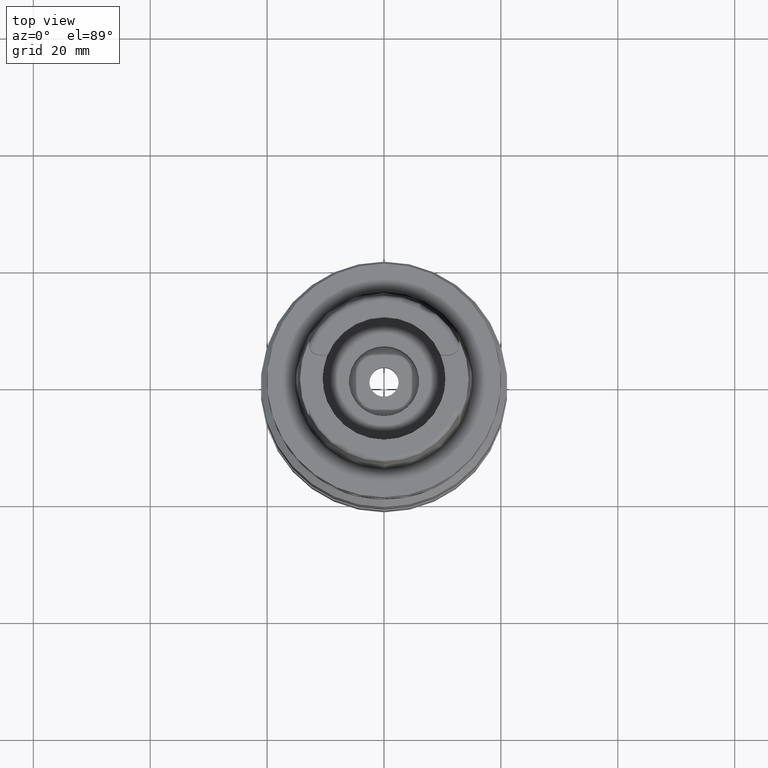
[diagram: clean part render]
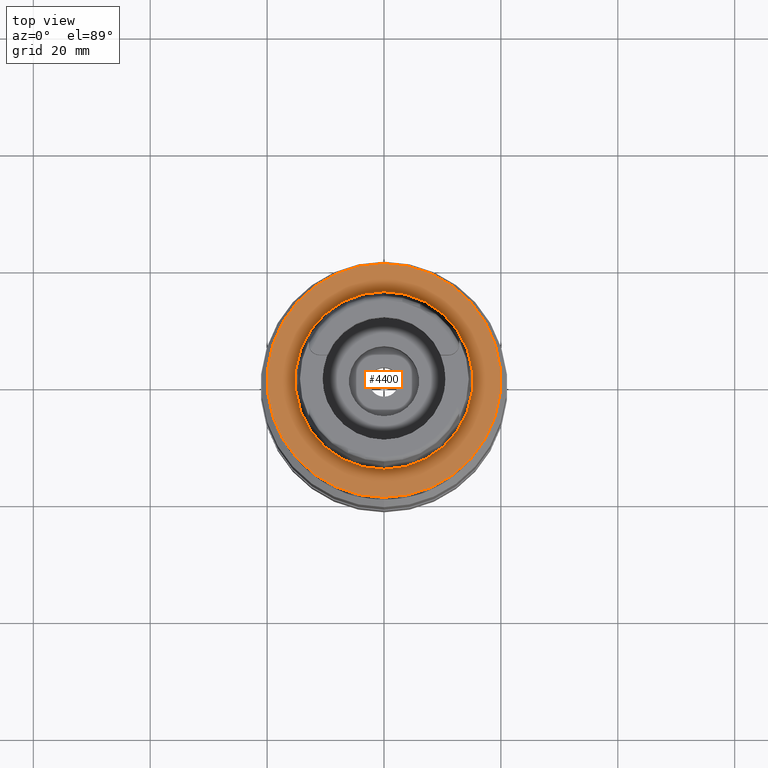
[diagram: same view with one face highlighted and labeled with its STEP entity id]
A machine part, top view. The second image highlights one B-rep face of the part: STEP entity #4400.
In plain terms, the highlighted planar face has unit normal (0, 0, -1).
Its self-contained STEP definition (entity closure, byte-faithful):
#86 = CIRCLE ( 'NONE', #4326, 20.00000000000000000 ) ;
#266 = AXIS2_PLACEMENT_3D ( 'NONE', #4580, #1258, #327 ) ;
#327 = DIRECTION ( 'NONE',  ( 0.0000000000000000000, 1.000000000000000000, 0.0000000000000000000 ) ) ;
#338 = CARTESIAN_POINT ( 'NONE',  ( 0.0000000000000000000, 1.224646799146999965E-14, 0.0000000000000000000 ) ) ;
#493 = VERTEX_POINT ( 'NONE', #5435 ) ;
#622 = CIRCLE ( 'NONE', #266, 15.20000663301000010 ) ;
#625 = CIRCLE ( 'NONE', #5028, 15.20000663301000010 ) ;
#669 = DIRECTION ( 'NONE',  ( 0.0000000000000000000, -1.000000000000000000, 0.0000000000000000000 ) ) ;
#1077 = EDGE_CURVE ( 'NONE', #4221, #493, #86, .T. ) ;
#1127 = VERTEX_POINT ( 'NONE', #4538 ) ;
#1258 = DIRECTION ( 'NONE',  ( 0.0000000000000000000, 0.0000000000000000000, 1.000000000000000000 ) ) ;
#1475 = ORIENTED_EDGE ( 'NONE', *, *, #2012, .F. ) ;
#1526 = EDGE_CURVE ( 'NONE', #1127, #2392, #622, .T. ) ;
#1746 = EDGE_LOOP ( 'NONE', ( #3646, #3473 ) ) ;
#1858 = AXIS2_PLACEMENT_3D ( 'NONE', #3693, #3307, #4568 ) ;
#2012 = EDGE_CURVE ( 'NONE', #2392, #1127, #625, .T. ) ;
#2220 = EDGE_LOOP ( 'NONE', ( #3496, #1475 ) ) ;
#2381 = DIRECTION ( 'NONE',  ( 0.0000000000000000000, -1.000000000000000000, 0.0000000000000000000 ) ) ;
#2390 = CARTESIAN_POINT ( 'NONE',  ( 0.0000000000000000000, 1.342457523729000028E-14, 0.0000000000000000000 ) ) ;
#2392 = VERTEX_POINT ( 'NONE', #3741 ) ;
#2503 = DIRECTION ( 'NONE',  ( 0.0000000000000000000, -1.000000000000000000, 0.0000000000000000000 ) ) ;
#2824 = FACE_OUTER_BOUND ( 'NONE', #1746, .T. ) ;
#3031 = EDGE_CURVE ( 'NONE', #493, #4221, #4768, .T. ) ;
#3045 = AXIS2_PLACEMENT_3D ( 'NONE', #338, #3637, #2381 ) ;
#3184 = DIRECTION ( 'NONE',  ( 0.0000000000000000000, 0.0000000000000000000, -1.000000000000000000 ) ) ;
#3307 = DIRECTION ( 'NONE',  ( 0.0000000000000000000, 0.0000000000000000000, -1.000000000000000000 ) ) ;
#3473 = ORIENTED_EDGE ( 'NONE', *, *, #1077, .F. ) ;
#3496 = ORIENTED_EDGE ( 'NONE', *, *, #1526, .F. ) ;
#3601 = CARTESIAN_POINT ( 'NONE',  ( 0.0000000000000000000, 1.532339307432999848E-14, 0.0000000000000000000 ) ) ;
#3637 = DIRECTION ( 'NONE',  ( 0.0000000000000000000, 0.0000000000000000000, -1.000000000000000000 ) ) ;
#3646 = ORIENTED_EDGE ( 'NONE', *, *, #3031, .F. ) ;
#3688 = PLANE ( 'NONE',  #3045 ) ;
#3693 = CARTESIAN_POINT ( 'NONE',  ( 0.0000000000000000000, 1.532339307432999848E-14, 0.0000000000000000000 ) ) ;
#3741 = CARTESIAN_POINT ( 'NONE',  ( 0.0000000000000000000, -15.20000663301000010, 1.136868377215999875E-13 ) ) ;
#4221 = VERTEX_POINT ( 'NONE', #5234 ) ;
#4326 = AXIS2_PLACEMENT_3D ( 'NONE', #3601, #3184, #669 ) ;
#4400 = ADVANCED_FACE ( 'NONE', ( #2824, #4904 ), #3688, .F. ) ;
#4538 = CARTESIAN_POINT ( 'NONE',  ( 0.0000000000000000000, 15.20000663301000010, 0.0000000000000000000 ) ) ;
#4568 = DIRECTION ( 'NONE',  ( 0.0000000000000000000, 1.000000000000000000, 0.0000000000000000000 ) ) ;
#4580 = CARTESIAN_POINT ( 'NONE',  ( 0.0000000000000000000, 1.342457523729000028E-14, 0.0000000000000000000 ) ) ;
#4768 = CIRCLE ( 'NONE', #1858, 20.00000000000000000 ) ;
#4904 = FACE_BOUND ( 'NONE', #2220, .T. ) ;
#4937 = DIRECTION ( 'NONE',  ( 0.0000000000000000000, 0.0000000000000000000, 1.000000000000000000 ) ) ;
#5028 = AXIS2_PLACEMENT_3D ( 'NONE', #2390, #4937, #2503 ) ;
#5234 = CARTESIAN_POINT ( 'NONE',  ( 0.0000000000000000000, -20.00000000000000000, 0.0000000000000000000 ) ) ;
#5435 = CARTESIAN_POINT ( 'NONE',  ( 0.0000000000000000000, 20.00000000000000000, 0.0000000000000000000 ) ) ;